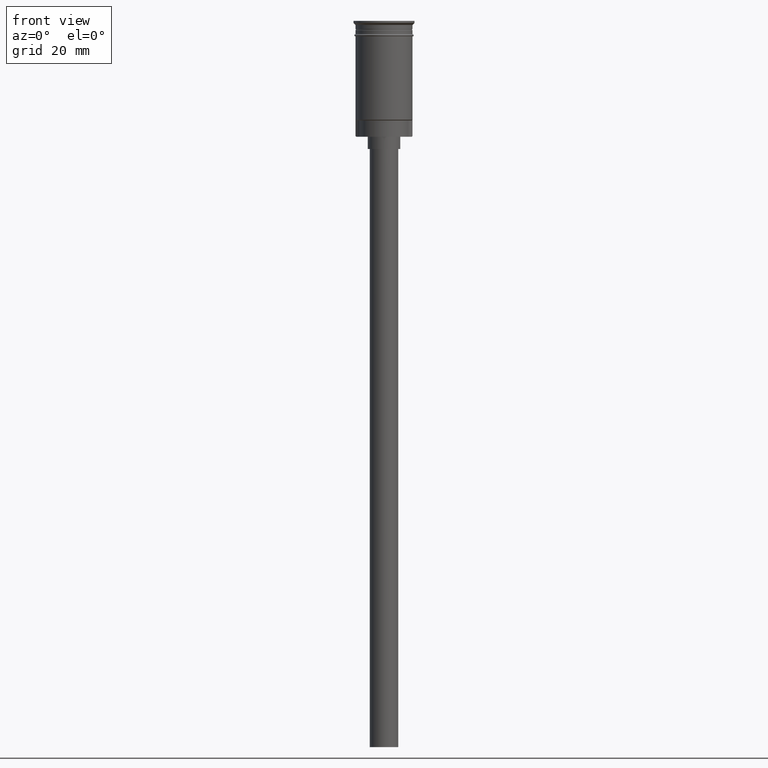
[diagram: clean part render]
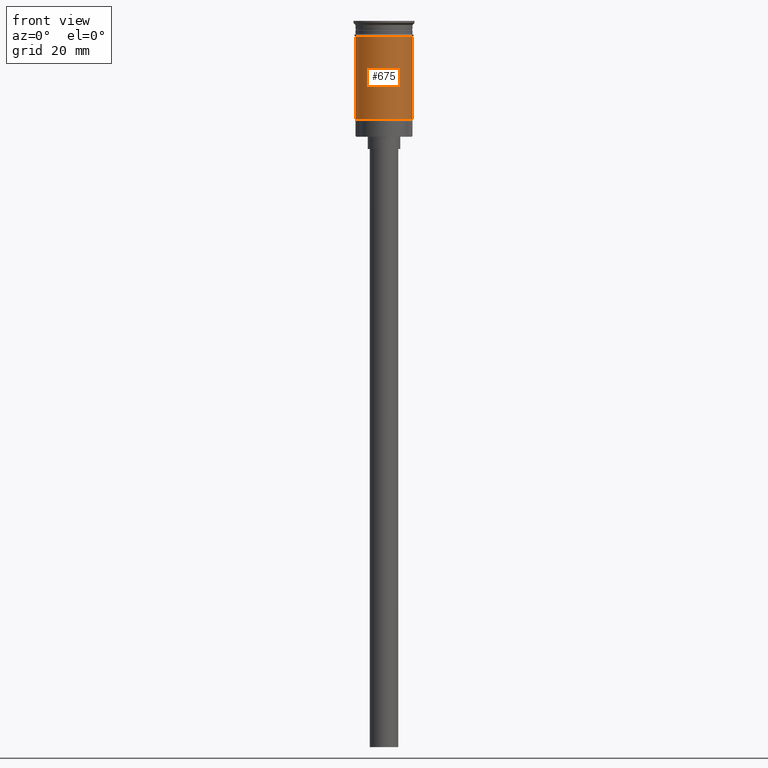
[diagram: same view with one face highlighted and labeled with its STEP entity id]
A machine part, front view. The second image highlights one B-rep face of the part: STEP entity #675.
In plain terms, the highlighted cylindrical surface (edge-blend (fillet) strip) has radius 7 mm, axis along (-0, -0, 1).
Its self-contained STEP definition (entity closure, byte-faithful):
#1 = VECTOR ( 'NONE', #603, 1000.000000000000000 ) ;
#6 = CARTESIAN_POINT ( 'NONE',  ( 0.000000000000000000, 0.000000000000000000, 0.000000000000000000 ) ) ;
#39 = DIRECTION ( 'NONE',  ( -0.000000000000000000, -0.000000000000000000, 1.000000000000000000 ) ) ;
#115 = EDGE_CURVE ( 'NONE', #303, #445, #245, .T. ) ;
#129 = FACE_OUTER_BOUND ( 'NONE', #142, .T. ) ;
#142 = EDGE_LOOP ( 'NONE', ( #1156, #626, #1602, #998 ) ) ;
#168 = LINE ( 'NONE', #780, #1238 ) ;
#200 = CARTESIAN_POINT ( 'NONE',  ( -6.999999999999993783, 0.000000000000000000, -24.29999999999998295 ) ) ;
#222 = AXIS2_PLACEMENT_3D ( 'NONE', #1538, #928, #301 ) ;
#245 = CIRCLE ( 'NONE', #222, 6.999999999999999112 ) ;
#301 = DIRECTION ( 'NONE',  ( 1.000000000000000000, 0.000000000000000000, 0.000000000000000000 ) ) ;
#303 = VERTEX_POINT ( 'NONE', #373 ) ;
#373 = CARTESIAN_POINT ( 'NONE',  ( -7.000000000000000000, 8.572527594031472204E-16, -3.799999999999998490 ) ) ;
#445 = VERTEX_POINT ( 'NONE', #659 ) ;
#491 = DIRECTION ( 'NONE',  ( 1.000000000000000000, 0.000000000000000000, 0.000000000000000000 ) ) ;
#512 = DIRECTION ( 'NONE',  ( -0.000000000000000000, -0.000000000000000000, 1.000000000000000000 ) ) ;
#533 = VERTEX_POINT ( 'NONE', #1418 ) ;
#603 = DIRECTION ( 'NONE',  ( -0.000000000000000000, -0.000000000000000000, 1.000000000000000000 ) ) ;
#626 = ORIENTED_EDGE ( 'NONE', *, *, #793, .T. ) ;
#628 = CARTESIAN_POINT ( 'NONE',  ( 0.000000000000000000, 0.000000000000000000, -24.29999999999998295 ) ) ;
#659 = CARTESIAN_POINT ( 'NONE',  ( 6.999999999999999112, 0.000000000000000000, -3.799999999999998490 ) ) ;
#675 = ADVANCED_FACE ( 'NONE', ( #129 ), #1218, .T. ) ;
#727 = DIRECTION ( 'NONE',  ( -0.000000000000000000, -0.000000000000000000, 1.000000000000000000 ) ) ;
#780 = CARTESIAN_POINT ( 'NONE',  ( 6.999999999999996447, 0.000000000000000000, 0.000000000000000000 ) ) ;
#793 = EDGE_CURVE ( 'NONE', #1366, #533, #1040, .T. ) ;
#830 = AXIS2_PLACEMENT_3D ( 'NONE', #6, #727, #491 ) ;
#928 = DIRECTION ( 'NONE',  ( -0.000000000000000000, -0.000000000000000000, 1.000000000000000000 ) ) ;
#998 = ORIENTED_EDGE ( 'NONE', *, *, #115, .F. ) ;
#1040 = CIRCLE ( 'NONE', #1237, 6.999999999999996447 ) ;
#1156 = ORIENTED_EDGE ( 'NONE', *, *, #1516, .F. ) ;
#1218 = CYLINDRICAL_SURFACE ( 'NONE', #830, 6.999999999999996447 ) ;
#1219 = LINE ( 'NONE', #1354, #1 ) ;
#1237 = AXIS2_PLACEMENT_3D ( 'NONE', #628, #39, #1409 ) ;
#1238 = VECTOR ( 'NONE', #512, 1000.000000000000000 ) ;
#1263 = EDGE_CURVE ( 'NONE', #533, #445, #168, .T. ) ;
#1354 = CARTESIAN_POINT ( 'NONE',  ( -6.999999999999996447, 8.572527594031468259E-16, 0.000000000000000000 ) ) ;
#1366 = VERTEX_POINT ( 'NONE', #200 ) ;
#1409 = DIRECTION ( 'NONE',  ( -1.000000000000000000, 0.000000000000000000, 0.000000000000000000 ) ) ;
#1418 = CARTESIAN_POINT ( 'NONE',  ( 6.999999999999996447, 8.572527594031468259E-16, -24.29999999999998295 ) ) ;
#1516 = EDGE_CURVE ( 'NONE', #1366, #303, #1219, .T. ) ;
#1538 = CARTESIAN_POINT ( 'NONE',  ( 0.000000000000000000, 0.000000000000000000, -3.799999999999998490 ) ) ;
#1602 = ORIENTED_EDGE ( 'NONE', *, *, #1263, .T. ) ;